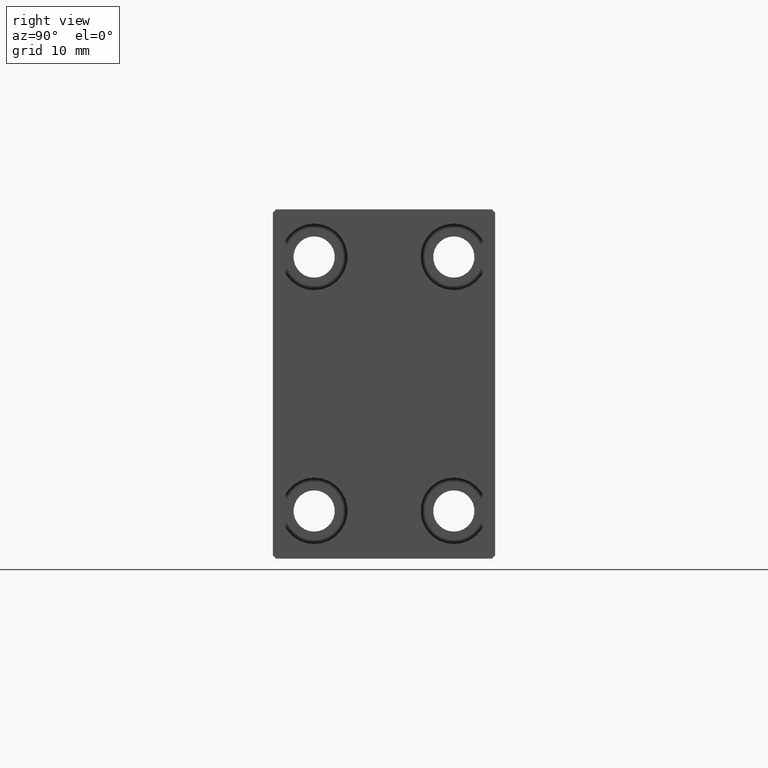
[diagram: clean part render]
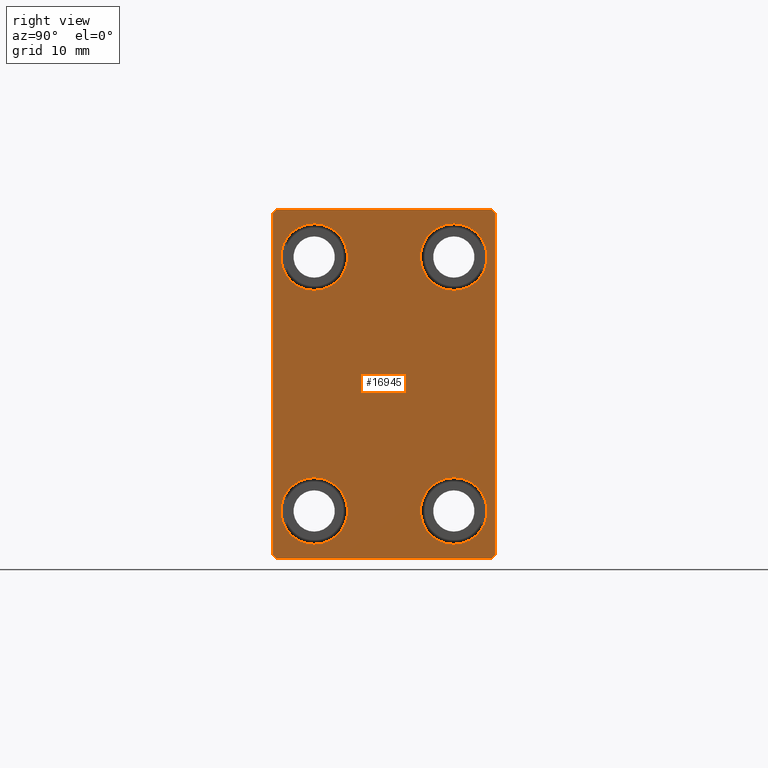
[diagram: same view with one face highlighted and labeled with its STEP entity id]
A machine part, right view. The second image highlights one B-rep face of the part: STEP entity #16945.
In plain terms, the highlighted planar face has unit normal (1, 0, 0).
Its self-contained STEP definition (entity closure, byte-faithful):
#124 = DIRECTION ( 'NONE',  ( -1.000000000000000000, -0.000000000000000000, -0.000000000000000000 ) ) ;
#181 = ORIENTED_EDGE ( 'NONE', *, *, #43446, .T. ) ;
#488 = EDGE_CURVE ( 'NONE', #34444, #11464, #3567, .T. ) ;
#1236 = AXIS2_PLACEMENT_3D ( 'NONE', #34564, #4000, #23349 ) ;
#1268 = CARTESIAN_POINT ( 'NONE',  ( 86.00000000000000000, 17.00000000000001421, 27.50000000000000355 ) ) ;
#1710 = ORIENTED_EDGE ( 'NONE', *, *, #16415, .T. ) ;
#2094 = VERTEX_POINT ( 'NONE', #29711 ) ;
#3132 = AXIS2_PLACEMENT_3D ( 'NONE', #27666, #41403, #4838 ) ;
#3229 = AXIS2_PLACEMENT_3D ( 'NONE', #13160, #26661, #12499 ) ;
#3515 = CARTESIAN_POINT ( 'NONE',  ( 86.00000000000000000, 17.50000000000000000, 27.00000000000001776 ) ) ;
#3567 = LINE ( 'NONE', #41222, #17028 ) ;
#3938 = ORIENTED_EDGE ( 'NONE', *, *, #24948, .T. ) ;
#4000 = DIRECTION ( 'NONE',  ( -1.000000000000000000, -0.000000000000000000, -0.000000000000000000 ) ) ;
#4728 = LINE ( 'NONE', #15578, #9723 ) ;
#4838 = DIRECTION ( 'NONE',  ( 0.000000000000000000, 0.000000000000000000, 1.000000000000000000 ) ) ;
#4885 = CARTESIAN_POINT ( 'NONE',  ( 86.00000000000000000, -11.00000000000000355, 25.25000000000000000 ) ) ;
#4893 = DIRECTION ( 'NONE',  ( 0.000000000000000000, 0.000000000000000000, 1.000000000000000000 ) ) ;
#5018 = DIRECTION ( 'NONE',  ( -0.000000000000000000, 0.7071067811865474617, 0.7071067811865474617 ) ) ;
#5348 = CIRCLE ( 'NONE', #3229, 5.250000000000000888 ) ;
#5823 = EDGE_CURVE ( 'NONE', #11464, #39371, #41739, .T. ) ;
#5984 = DIRECTION ( 'NONE',  ( 0.000000000000000000, 0.000000000000000000, -1.000000000000000000 ) ) ;
#6039 = AXIS2_PLACEMENT_3D ( 'NONE', #38981, #22582, #8638 ) ;
#7746 = CIRCLE ( 'NONE', #9176, 5.250000000000000888 ) ;
#7870 = VERTEX_POINT ( 'NONE', #29929 ) ;
#8638 = DIRECTION ( 'NONE',  ( 0.000000000000000000, 0.000000000000000000, -1.000000000000000000 ) ) ;
#8809 = VERTEX_POINT ( 'NONE', #4885 ) ;
#9009 = EDGE_CURVE ( 'NONE', #41763, #17666, #18855, .T. ) ;
#9101 = CARTESIAN_POINT ( 'NONE',  ( 86.00000000000000000, -17.50000000000000000, 27.49999999999999645 ) ) ;
#9176 = AXIS2_PLACEMENT_3D ( 'NONE', #26369, #43203, #18854 ) ;
#9437 = DIRECTION ( 'NONE',  ( 0.000000000000000000, 1.000000000000000000, 0.000000000000000000 ) ) ;
#9722 = ORIENTED_EDGE ( 'NONE', *, *, #21704, .T. ) ;
#9723 = VECTOR ( 'NONE', #11395, 1000.000000000000000 ) ;
#10317 = AXIS2_PLACEMENT_3D ( 'NONE', #39854, #29651, #12617 ) ;
#11173 = CARTESIAN_POINT ( 'NONE',  ( 86.00000000000000000, 11.00000000000000355, 25.25000000000000000 ) ) ;
#11395 = DIRECTION ( 'NONE',  ( 0.000000000000000000, -1.261617073437677752E-16, 1.000000000000000000 ) ) ;
#11464 = VERTEX_POINT ( 'NONE', #1268 ) ;
#11478 = DIRECTION ( 'NONE',  ( -0.000000000000000000, 0.7071067811865474617, -0.7071067811865474617 ) ) ;
#11540 = EDGE_CURVE ( 'NONE', #38168, #14955, #18770, .T. ) ;
#11623 = CIRCLE ( 'NONE', #3132, 5.250000000000000888 ) ;
#11727 = LINE ( 'NONE', #31852, #40643 ) ;
#11742 = DIRECTION ( 'NONE',  ( -1.000000000000000000, -0.000000000000000000, -0.000000000000000000 ) ) ;
#11842 = CIRCLE ( 'NONE', #1236, 5.250000000000000888 ) ;
#12342 = AXIS2_PLACEMENT_3D ( 'NONE', #42076, #11742, #35640 ) ;
#12499 = DIRECTION ( 'NONE',  ( 0.000000000000000000, 0.000000000000000000, 1.000000000000000000 ) ) ;
#12617 = DIRECTION ( 'NONE',  ( 0.000000000000000000, 0.000000000000000000, 1.000000000000000000 ) ) ;
#12759 = CARTESIAN_POINT ( 'NONE',  ( 86.00000000000000000, -17.50000000000000000, -27.00000000000000355 ) ) ;
#12785 = EDGE_CURVE ( 'NONE', #7870, #8809, #41332, .T. ) ;
#13112 = VECTOR ( 'NONE', #5018, 1000.000000000000114 ) ;
#13160 = CARTESIAN_POINT ( 'NONE',  ( 86.00000000000000000, 11.00000000000000355, -20.00000000000000000 ) ) ;
#14566 = CARTESIAN_POINT ( 'NONE',  ( 86.00000000000000000, 17.50000000000000711, -27.00000000000000355 ) ) ;
#14905 = ORIENTED_EDGE ( 'NONE', *, *, #9009, .T. ) ;
#14955 = VERTEX_POINT ( 'NONE', #14566 ) ;
#15000 = EDGE_CURVE ( 'NONE', #20032, #38168, #36465, .T. ) ;
#15224 = EDGE_LOOP ( 'NONE', ( #30849, #36965, #14905, #38961, #41144, #19965, #9722, #37333 ) ) ;
#15482 = CARTESIAN_POINT ( 'NONE',  ( 86.00000000000000000, -17.00000000000000000, -27.50000000000000355 ) ) ;
#15578 = CARTESIAN_POINT ( 'NONE',  ( 86.00000000000000000, 17.50000000000000711, -27.50000000000000355 ) ) ;
#16079 = CARTESIAN_POINT ( 'NONE',  ( 86.00000000000000000, -17.50000000000000000, -27.50000000000000355 ) ) ;
#16154 = PLANE ( 'NONE',  #6039 ) ;
#16371 = VERTEX_POINT ( 'NONE', #36630 ) ;
#16415 = EDGE_CURVE ( 'NONE', #2094, #16371, #5348, .T. ) ;
#16945 = ADVANCED_FACE ( 'NONE', ( #32745, #42516, #32313, #42956, #43178 ), #16154, .T. ) ;
#16951 = EDGE_CURVE ( 'NONE', #23165, #31160, #42845, .T. ) ;
#17028 = VECTOR ( 'NONE', #41442, 1000.000000000000114 ) ;
#17666 = VERTEX_POINT ( 'NONE', #12759 ) ;
#17680 = CARTESIAN_POINT ( 'NONE',  ( 86.00000000000000000, -22.25000000000000355, -22.25000000000000355 ) ) ;
#18770 = LINE ( 'NONE', #21866, #13112 ) ;
#18854 = DIRECTION ( 'NONE',  ( 0.000000000000000000, 0.000000000000000000, 1.000000000000000000 ) ) ;
#18855 = LINE ( 'NONE', #9101, #41336 ) ;
#18860 = CARTESIAN_POINT ( 'NONE',  ( 86.00000000000000000, 11.00000000000000355, -20.00000000000000000 ) ) ;
#19164 = CIRCLE ( 'NONE', #39679, 5.250000000000000888 ) ;
#19372 = CARTESIAN_POINT ( 'NONE',  ( 86.00000000000000000, 17.00000000000000711, -27.50000000000000355 ) ) ;
#19589 = EDGE_CURVE ( 'NONE', #17666, #20032, #34287, .T. ) ;
#19698 = EDGE_LOOP ( 'NONE', ( #30330, #43823 ) ) ;
#19965 = ORIENTED_EDGE ( 'NONE', *, *, #11540, .T. ) ;
#20032 = VERTEX_POINT ( 'NONE', #15482 ) ;
#21307 = DIRECTION ( 'NONE',  ( -1.000000000000000000, -0.000000000000000000, -0.000000000000000000 ) ) ;
#21452 = CARTESIAN_POINT ( 'NONE',  ( 86.00000000000000000, 11.00000000000000355, 14.75000000000000000 ) ) ;
#21463 = DIRECTION ( 'NONE',  ( 0.000000000000000000, -0.7071067811865474617, -0.7071067811865474617 ) ) ;
#21588 = CARTESIAN_POINT ( 'NONE',  ( 86.00000000000000000, 17.50000000000000000, 27.50000000000000355 ) ) ;
#21704 = EDGE_CURVE ( 'NONE', #14955, #34444, #4728, .T. ) ;
#21866 = CARTESIAN_POINT ( 'NONE',  ( 86.00000000000000000, 22.25000000000000711, -22.25000000000000711 ) ) ;
#21874 = ORIENTED_EDGE ( 'NONE', *, *, #16951, .T. ) ;
#22348 = CARTESIAN_POINT ( 'NONE',  ( 86.00000000000000000, -11.00000000000000355, -25.25000000000000000 ) ) ;
#22582 = DIRECTION ( 'NONE',  ( 1.000000000000000000, 0.000000000000000000, 0.000000000000000000 ) ) ;
#22838 = EDGE_CURVE ( 'NONE', #31160, #23165, #11842, .T. ) ;
#22946 = VERTEX_POINT ( 'NONE', #40311 ) ;
#23165 = VERTEX_POINT ( 'NONE', #21452 ) ;
#23349 = DIRECTION ( 'NONE',  ( 0.000000000000000000, 0.000000000000000000, 1.000000000000000000 ) ) ;
#24948 = EDGE_CURVE ( 'NONE', #16371, #2094, #28863, .T. ) ;
#25410 = EDGE_LOOP ( 'NONE', ( #21874, #28690 ) ) ;
#26369 = CARTESIAN_POINT ( 'NONE',  ( 86.00000000000000000, -11.00000000000000355, -20.00000000000000000 ) ) ;
#26661 = DIRECTION ( 'NONE',  ( -1.000000000000000000, -0.000000000000000000, -0.000000000000000000 ) ) ;
#27666 = CARTESIAN_POINT ( 'NONE',  ( 86.00000000000000000, -11.00000000000000355, 20.00000000000000000 ) ) ;
#28613 = VECTOR ( 'NONE', #9437, 1000.000000000000000 ) ;
#28690 = ORIENTED_EDGE ( 'NONE', *, *, #22838, .T. ) ;
#28863 = CIRCLE ( 'NONE', #33122, 5.250000000000000888 ) ;
#29435 = EDGE_CURVE ( 'NONE', #22946, #32524, #7746, .T. ) ;
#29651 = DIRECTION ( 'NONE',  ( -1.000000000000000000, -0.000000000000000000, -0.000000000000000000 ) ) ;
#29711 = CARTESIAN_POINT ( 'NONE',  ( 86.00000000000000000, 11.00000000000000355, -25.25000000000000000 ) ) ;
#29929 = CARTESIAN_POINT ( 'NONE',  ( 86.00000000000000000, -11.00000000000000355, 14.75000000000000000 ) ) ;
#30248 = DIRECTION ( 'NONE',  ( 0.000000000000000000, 0.000000000000000000, 1.000000000000000000 ) ) ;
#30330 = ORIENTED_EDGE ( 'NONE', *, *, #37109, .T. ) ;
#30537 = ORIENTED_EDGE ( 'NONE', *, *, #12785, .T. ) ;
#30849 = ORIENTED_EDGE ( 'NONE', *, *, #5823, .T. ) ;
#31160 = VERTEX_POINT ( 'NONE', #11173 ) ;
#31279 = EDGE_LOOP ( 'NONE', ( #1710, #3938 ) ) ;
#31486 = CARTESIAN_POINT ( 'NONE',  ( 86.00000000000000000, -17.00000000000000000, 27.49999999999999645 ) ) ;
#31564 = CARTESIAN_POINT ( 'NONE',  ( 86.00000000000000000, -17.50000000000000000, 26.99999999999999645 ) ) ;
#31706 = CARTESIAN_POINT ( 'NONE',  ( 86.00000000000000000, -11.00000000000000355, -20.00000000000000000 ) ) ;
#31852 = CARTESIAN_POINT ( 'NONE',  ( 86.00000000000000000, -22.24999999999999645, 22.24999999999999645 ) ) ;
#32313 = FACE_BOUND ( 'NONE', #25410, .T. ) ;
#32524 = VERTEX_POINT ( 'NONE', #22348 ) ;
#32745 = FACE_BOUND ( 'NONE', #31279, .T. ) ;
#33122 = AXIS2_PLACEMENT_3D ( 'NONE', #18860, #21307, #4893 ) ;
#34287 = LINE ( 'NONE', #17680, #37252 ) ;
#34444 = VERTEX_POINT ( 'NONE', #3515 ) ;
#34498 = EDGE_LOOP ( 'NONE', ( #30537, #181 ) ) ;
#34564 = CARTESIAN_POINT ( 'NONE',  ( 86.00000000000000000, 11.00000000000000355, 20.00000000000000000 ) ) ;
#35640 = DIRECTION ( 'NONE',  ( 0.000000000000000000, 0.000000000000000000, 1.000000000000000000 ) ) ;
#36465 = LINE ( 'NONE', #16079, #28613 ) ;
#36630 = CARTESIAN_POINT ( 'NONE',  ( 86.00000000000000000, 11.00000000000000355, -14.75000000000000000 ) ) ;
#36965 = ORIENTED_EDGE ( 'NONE', *, *, #43408, .T. ) ;
#37109 = EDGE_CURVE ( 'NONE', #32524, #22946, #19164, .T. ) ;
#37252 = VECTOR ( 'NONE', #11478, 1000.000000000000114 ) ;
#37333 = ORIENTED_EDGE ( 'NONE', *, *, #488, .T. ) ;
#37726 = VECTOR ( 'NONE', #38637, 1000.000000000000000 ) ;
#38168 = VERTEX_POINT ( 'NONE', #19372 ) ;
#38637 = DIRECTION ( 'NONE',  ( 0.000000000000000000, -1.000000000000000000, -1.982541115402065110E-16 ) ) ;
#38961 = ORIENTED_EDGE ( 'NONE', *, *, #19589, .T. ) ;
#38981 = CARTESIAN_POINT ( 'NONE',  ( 86.00000000000000000, 0.000000000000000000, 0.000000000000000000 ) ) ;
#39371 = VERTEX_POINT ( 'NONE', #31486 ) ;
#39679 = AXIS2_PLACEMENT_3D ( 'NONE', #31706, #124, #30248 ) ;
#39854 = CARTESIAN_POINT ( 'NONE',  ( 86.00000000000000000, 11.00000000000000355, 20.00000000000000000 ) ) ;
#40311 = CARTESIAN_POINT ( 'NONE',  ( 86.00000000000000000, -11.00000000000000355, -14.75000000000000000 ) ) ;
#40643 = VECTOR ( 'NONE', #21463, 1000.000000000000114 ) ;
#41144 = ORIENTED_EDGE ( 'NONE', *, *, #15000, .T. ) ;
#41222 = CARTESIAN_POINT ( 'NONE',  ( 86.00000000000000000, 22.25000000000000711, 22.25000000000000711 ) ) ;
#41332 = CIRCLE ( 'NONE', #12342, 5.250000000000000888 ) ;
#41336 = VECTOR ( 'NONE', #5984, 1000.000000000000000 ) ;
#41403 = DIRECTION ( 'NONE',  ( -1.000000000000000000, -0.000000000000000000, -0.000000000000000000 ) ) ;
#41442 = DIRECTION ( 'NONE',  ( -0.000000000000000000, -0.7071067811865474617, 0.7071067811865474617 ) ) ;
#41739 = LINE ( 'NONE', #21588, #37726 ) ;
#41763 = VERTEX_POINT ( 'NONE', #31564 ) ;
#42076 = CARTESIAN_POINT ( 'NONE',  ( 86.00000000000000000, -11.00000000000000355, 20.00000000000000000 ) ) ;
#42516 = FACE_BOUND ( 'NONE', #34498, .T. ) ;
#42845 = CIRCLE ( 'NONE', #10317, 5.250000000000000888 ) ;
#42956 = FACE_BOUND ( 'NONE', #19698, .T. ) ;
#43178 = FACE_OUTER_BOUND ( 'NONE', #15224, .T. ) ;
#43203 = DIRECTION ( 'NONE',  ( -1.000000000000000000, -0.000000000000000000, -0.000000000000000000 ) ) ;
#43408 = EDGE_CURVE ( 'NONE', #39371, #41763, #11727, .T. ) ;
#43446 = EDGE_CURVE ( 'NONE', #8809, #7870, #11623, .T. ) ;
#43823 = ORIENTED_EDGE ( 'NONE', *, *, #29435, .T. ) ;